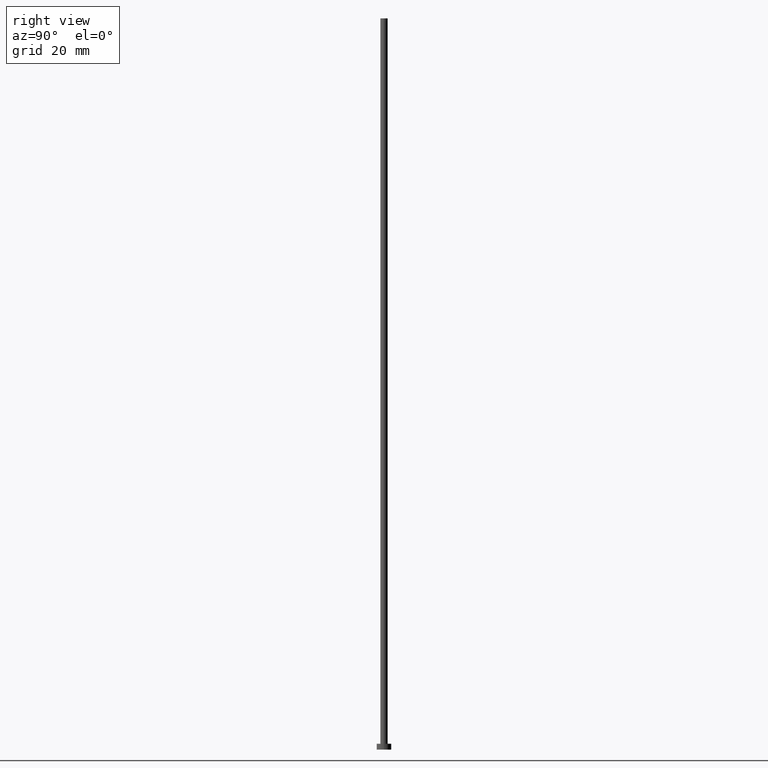
[diagram: clean part render]
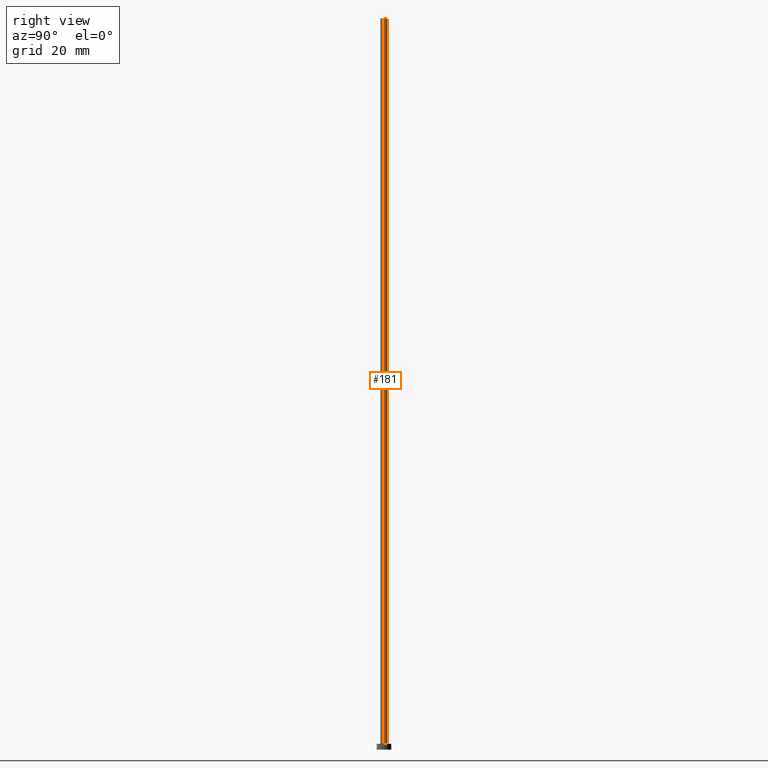
[diagram: same view with one face highlighted and labeled with its STEP entity id]
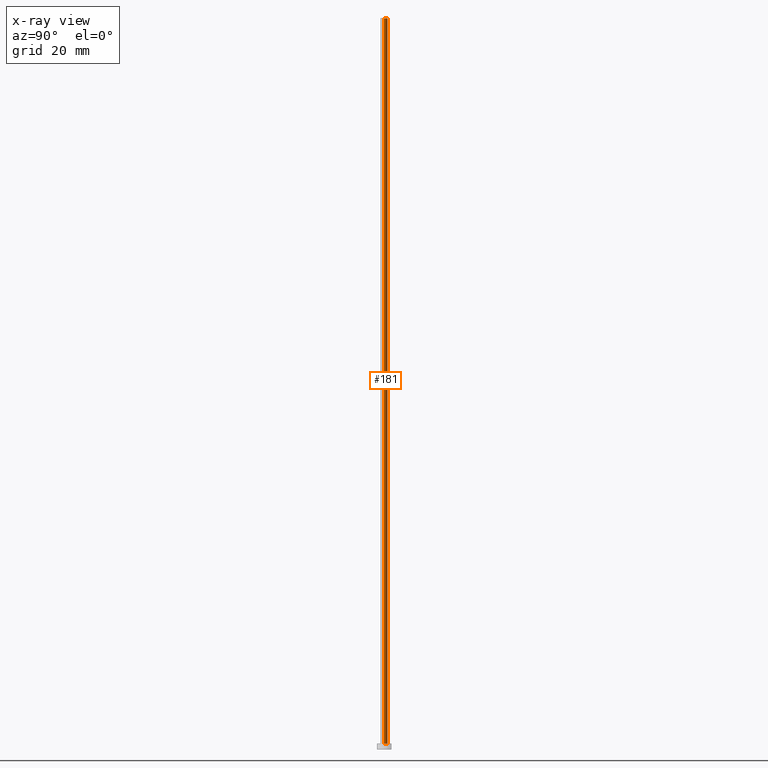
[diagram: x-ray of the same camera — body ghosted, the highlighted face saturated]
A machine part, right view. The second image highlights one B-rep face of the part: STEP entity #181.
The next image is the same camera in x-ray: the body ghosted, the highlighted face saturated — about 0% of this face is hidden behind the body in this view.
In plain terms, the highlighted cylindrical surface (edge-blend (fillet) strip) has radius 1.25 mm, axis along (-0, -0, -1).
Its self-contained STEP definition (entity closure, byte-faithful):
#5 = DIRECTION ( 'NONE',  ( -0.000000000000000000, -0.000000000000000000, -1.000000000000000000 ) ) ;
#11 = CARTESIAN_POINT ( 'NONE',  ( -1.250000000000000000, 0.000000000000000000, 250.0000000000000000 ) ) ;
#14 = ORIENTED_EDGE ( 'NONE', *, *, #132, .F. ) ;
#15 = VERTEX_POINT ( 'NONE', #59 ) ;
#34 = EDGE_CURVE ( 'NONE', #15, #99, #113, .T. ) ;
#38 = AXIS2_PLACEMENT_3D ( 'NONE', #72, #106, #91 ) ;
#46 = VECTOR ( 'NONE', #138, 1000.000000000000000 ) ;
#59 = CARTESIAN_POINT ( 'NONE',  ( 1.250000000000000000, 1.530808498934191571E-16, 250.0000000000000000 ) ) ;
#64 = DIRECTION ( 'NONE',  ( 1.000000000000000000, 0.000000000000000000, 0.000000000000000000 ) ) ;
#66 = VECTOR ( 'NONE', #95, 1000.000000000000000 ) ;
#72 = CARTESIAN_POINT ( 'NONE',  ( 0.000000000000000000, 0.000000000000000000, 250.0000000000000000 ) ) ;
#78 = VERTEX_POINT ( 'NONE', #214 ) ;
#79 = LINE ( 'NONE', #11, #66 ) ;
#87 = AXIS2_PLACEMENT_3D ( 'NONE', #184, #5, #255 ) ;
#91 = DIRECTION ( 'NONE',  ( 1.000000000000000000, 0.000000000000000000, 0.000000000000000000 ) ) ;
#95 = DIRECTION ( 'NONE',  ( -0.000000000000000000, -0.000000000000000000, -1.000000000000000000 ) ) ;
#99 = VERTEX_POINT ( 'NONE', #250 ) ;
#106 = DIRECTION ( 'NONE',  ( 0.000000000000000000, 0.000000000000000000, 1.000000000000000000 ) ) ;
#113 = LINE ( 'NONE', #249, #46 ) ;
#115 = EDGE_LOOP ( 'NONE', ( #117, #121, #212, #14 ) ) ;
#117 = ORIENTED_EDGE ( 'NONE', *, *, #190, .F. ) ;
#121 = ORIENTED_EDGE ( 'NONE', *, *, #34, .T. ) ;
#126 = FACE_OUTER_BOUND ( 'NONE', #115, .T. ) ;
#132 = EDGE_CURVE ( 'NONE', #78, #176, #79, .T. ) ;
#138 = DIRECTION ( 'NONE',  ( -0.000000000000000000, -0.000000000000000000, -1.000000000000000000 ) ) ;
#140 = AXIS2_PLACEMENT_3D ( 'NONE', #178, #251, #64 ) ;
#152 = EDGE_CURVE ( 'NONE', #99, #176, #242, .T. ) ;
#176 = VERTEX_POINT ( 'NONE', #239 ) ;
#178 = CARTESIAN_POINT ( 'NONE',  ( 0.000000000000000000, 0.000000000000000000, 2.000000000000000000 ) ) ;
#181 = ADVANCED_FACE ( 'NONE', ( #126 ), #205, .T. ) ;
#183 = CIRCLE ( 'NONE', #38, 1.250000000000000000 ) ;
#184 = CARTESIAN_POINT ( 'NONE',  ( 0.000000000000000000, 0.000000000000000000, 250.0000000000000000 ) ) ;
#190 = EDGE_CURVE ( 'NONE', #15, #78, #183, .T. ) ;
#205 = CYLINDRICAL_SURFACE ( 'NONE', #87, 1.250000000000000000 ) ;
#212 = ORIENTED_EDGE ( 'NONE', *, *, #152, .T. ) ;
#214 = CARTESIAN_POINT ( 'NONE',  ( -1.250000000000000000, 0.000000000000000000, 250.0000000000000000 ) ) ;
#239 = CARTESIAN_POINT ( 'NONE',  ( -1.250000000000000000, 0.000000000000000000, 2.000000000000000000 ) ) ;
#242 = CIRCLE ( 'NONE', #140, 1.250000000000000000 ) ;
#249 = CARTESIAN_POINT ( 'NONE',  ( 1.250000000000000000, 1.530808498934191571E-16, 250.0000000000000000 ) ) ;
#250 = CARTESIAN_POINT ( 'NONE',  ( 1.250000000000000000, 1.530808498934191571E-16, 2.000000000000000000 ) ) ;
#251 = DIRECTION ( 'NONE',  ( 0.000000000000000000, 0.000000000000000000, 1.000000000000000000 ) ) ;
#255 = DIRECTION ( 'NONE',  ( -1.000000000000000000, 0.000000000000000000, 0.000000000000000000 ) ) ;